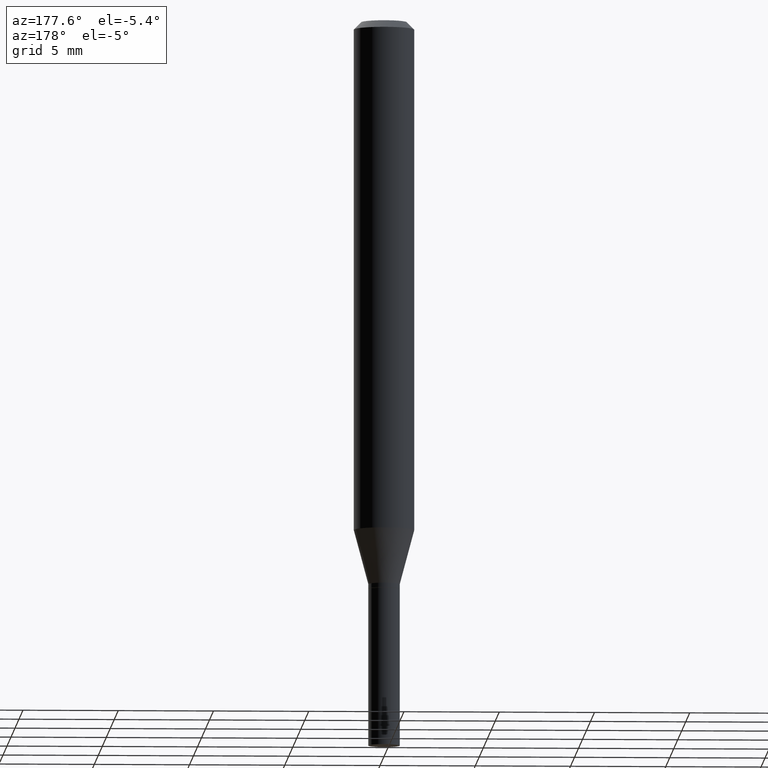
[diagram: clean part render]
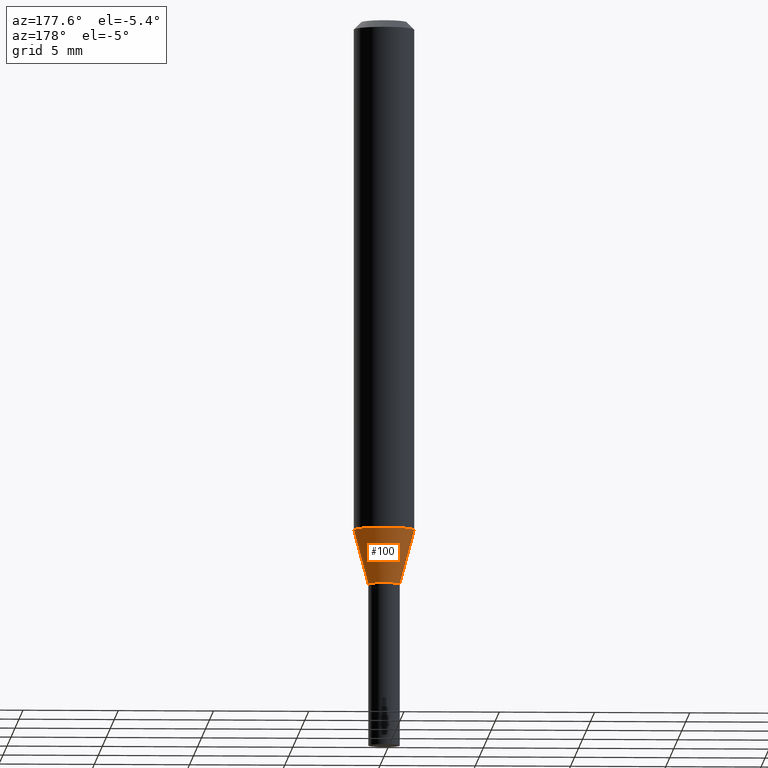
[diagram: same view with one face highlighted and labeled with its STEP entity id]
A machine part, auxiliary view. The second image highlights one B-rep face of the part: STEP entity #100.
In plain terms, the highlighted conical surface has half-angle 15 deg.
Its self-contained STEP definition (entity closure, byte-faithful):
#9 = DIRECTION ( 'NONE',  ( -2.445468806185136597E-29, 3.491481338843145583E-15, 1.000000000000000000 ) ) ;
#12 = AXIS2_PLACEMENT_3D ( 'NONE', #350, #271, #385 ) ;
#16 = DIRECTION ( 'NONE',  ( 1.000000000000000000, -6.982962677686270655E-15, 0.000000000000000000 ) ) ;
#41 = EDGE_CURVE ( 'NONE', #399, #85, #452, .T. ) ;
#47 = EDGE_LOOP ( 'NONE', ( #79, #267, #292, #137 ) ) ;
#49 = EDGE_CURVE ( 'NONE', #179, #308, #289, .T. ) ;
#72 = CARTESIAN_POINT ( 'NONE',  ( -0.06250000000000000000, -3.232574977394969361E-15, -1.053038475772934746 ) ) ;
#78 = DIRECTION ( 'NONE',  ( 1.000000000000000000, -6.982962677686261977E-15, 0.000000000000000000 ) ) ;
#79 = ORIENTED_EDGE ( 'NONE', *, *, #41, .T. ) ;
#85 = VERTEX_POINT ( 'NONE', #239 ) ;
#100 = ADVANCED_FACE ( 'NONE', ( #344 ), #372, .T. ) ;
#102 = AXIS2_PLACEMENT_3D ( 'NONE', #411, #163, #16 ) ;
#117 = DIRECTION ( 'NONE',  ( 0.2588190451025216277, 1.565188264969619995E-15, 0.9659258262890679791 ) ) ;
#137 = ORIENTED_EDGE ( 'NONE', *, *, #439, .F. ) ;
#141 = VECTOR ( 'NONE', #117, 39.37007874015748143 ) ;
#163 = DIRECTION ( 'NONE',  ( -2.445468806185136597E-29, 3.491481338843145583E-15, 1.000000000000000000 ) ) ;
#170 = CARTESIAN_POINT ( 'NONE',  ( 0.06250000000000000000, -4.113099354600423647E-15, -1.053038475772934746 ) ) ;
#178 = EDGE_CURVE ( 'NONE', #85, #308, #386, .T. ) ;
#179 = VERTEX_POINT ( 'NONE', #170 ) ;
#219 = LINE ( 'NONE', #466, #141 ) ;
#239 = CARTESIAN_POINT ( 'NONE',  ( -0.03250000000000018846, -3.534612174012599828E-15, -1.165000000000000036 ) ) ;
#267 = ORIENTED_EDGE ( 'NONE', *, *, #178, .T. ) ;
#271 = DIRECTION ( 'NONE',  ( -2.445468806185136597E-29, 3.491481338843145583E-15, 1.000000000000000000 ) ) ;
#281 = DIRECTION ( 'NONE',  ( -0.2588190451025216277, 5.211531920934551831E-15, 0.9659258262890679791 ) ) ;
#289 = CIRCLE ( 'NONE', #102, 0.06250000000000000000 ) ;
#292 = ORIENTED_EDGE ( 'NONE', *, *, #49, .F. ) ;
#298 = AXIS2_PLACEMENT_3D ( 'NONE', #336, #9, #78 ) ;
#308 = VERTEX_POINT ( 'NONE', #72 ) ;
#336 = CARTESIAN_POINT ( 'NONE',  ( 2.848971159205684292E-29, -4.067575759752264243E-15, -1.165000000000000036 ) ) ;
#344 = FACE_OUTER_BOUND ( 'NONE', #47, .T. ) ;
#350 = CARTESIAN_POINT ( 'NONE',  ( 2.848971159205684292E-29, -4.067575759752264243E-15, -1.165000000000000036 ) ) ;
#354 = VECTOR ( 'NONE', #281, 39.37007874015748143 ) ;
#372 = CONICAL_SURFACE ( 'NONE', #12, 0.03250000000000018846, 0.2617993877991502960 ) ;
#385 = DIRECTION ( 'NONE',  ( 1.000000000000000000, -6.982962677686261977E-15, 0.000000000000000000 ) ) ;
#386 = LINE ( 'NONE', #455, #354 ) ;
#399 = VERTEX_POINT ( 'NONE', #400 ) ;
#400 = CARTESIAN_POINT ( 'NONE',  ( 0.03250000000000018846, -4.294522046777069173E-15, -1.165000000000000036 ) ) ;
#411 = CARTESIAN_POINT ( 'NONE',  ( 2.575172744215455039E-29, -3.676664187245031977E-15, -1.053038475772934746 ) ) ;
#439 = EDGE_CURVE ( 'NONE', #399, #179, #219, .T. ) ;
#452 = CIRCLE ( 'NONE', #298, 0.03250000000000018846 ) ;
#455 = CARTESIAN_POINT ( 'NONE',  ( -0.03250000000000018846, -3.836649370630230294E-15, -1.165000000000000036 ) ) ;
#466 = CARTESIAN_POINT ( 'NONE',  ( 0.03250000000000018846, -4.294522046777069173E-15, -1.165000000000000036 ) ) ;